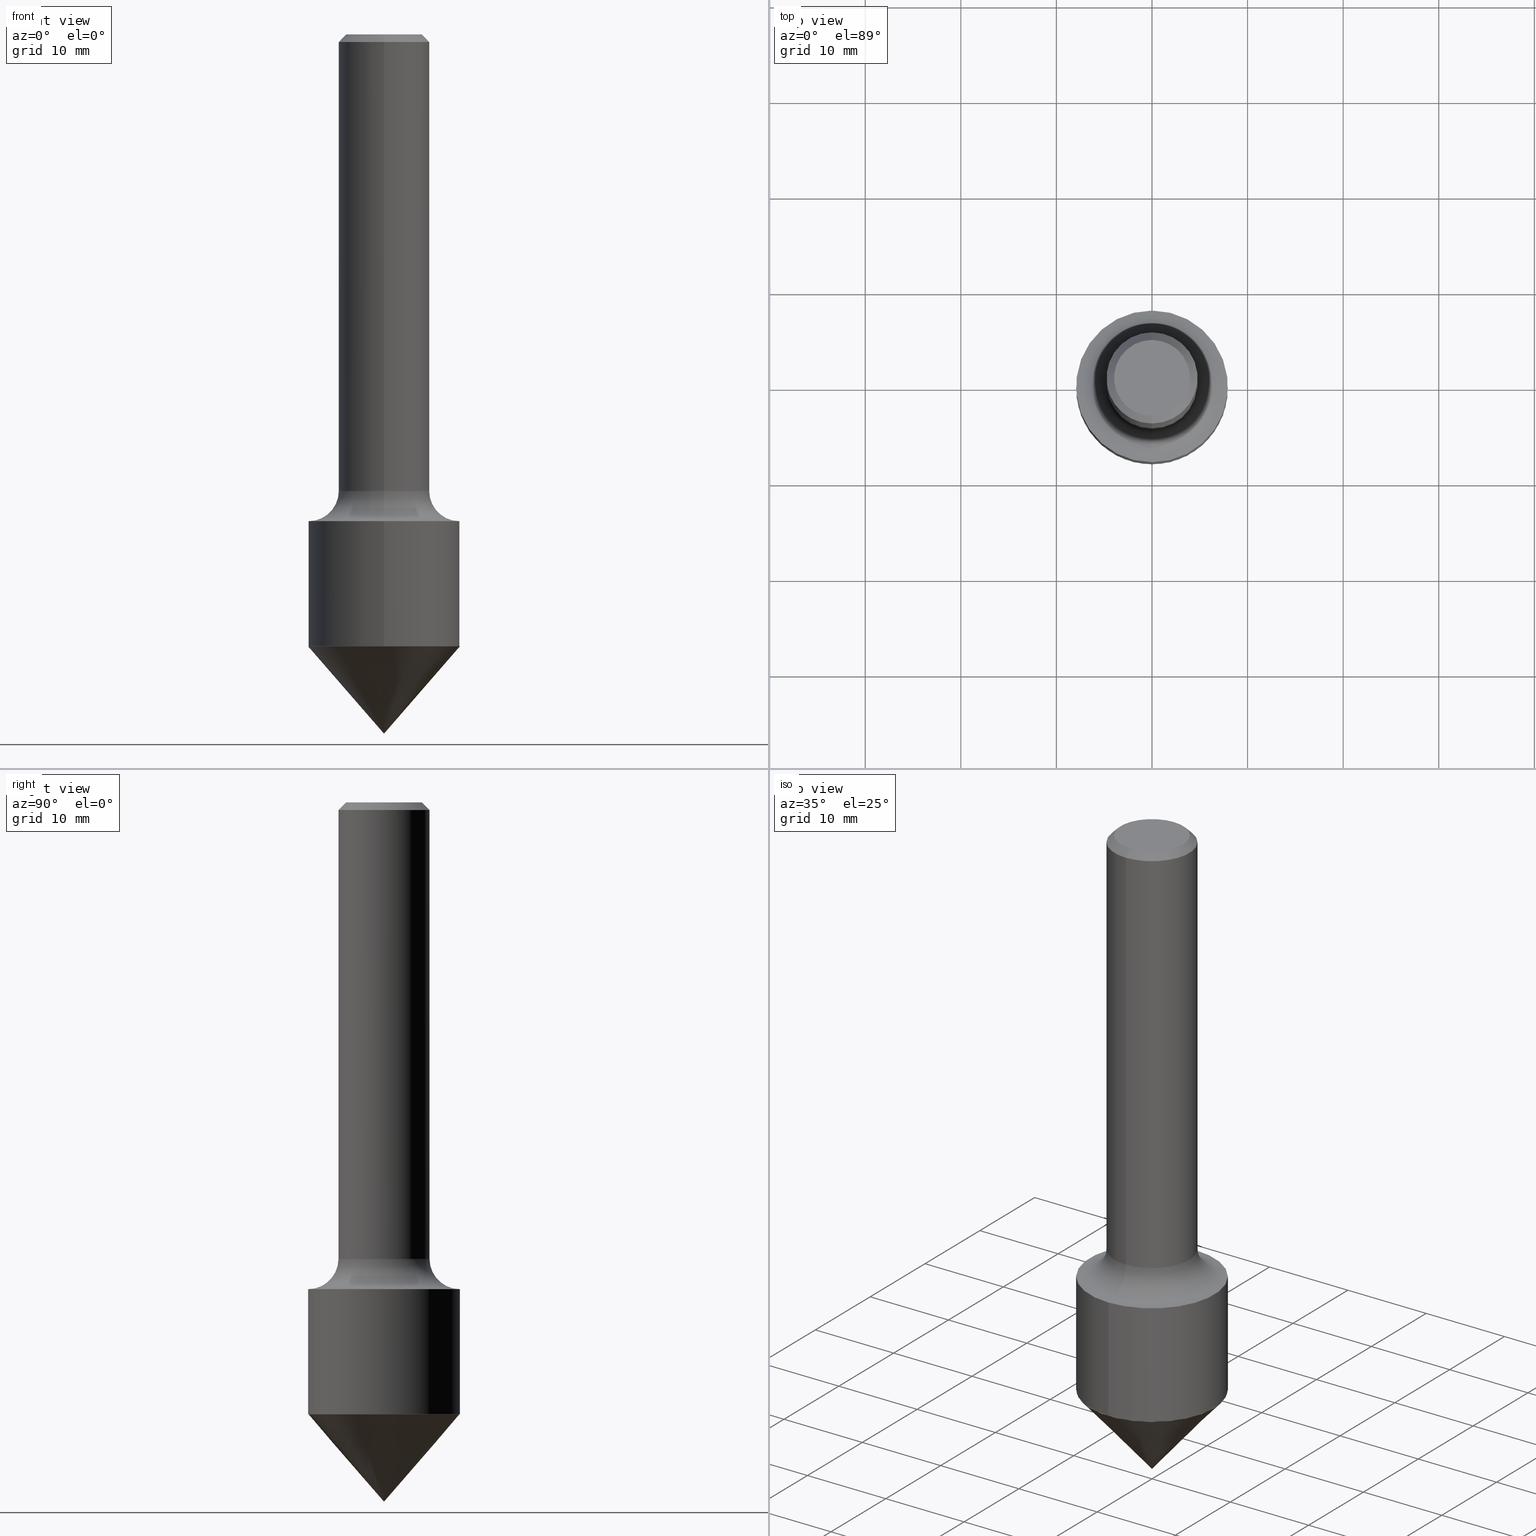
[diagram: canonical four-view strip — front | top / right | iso, engineering-drawing reading convention]
A machine part, canonical four-view strip (front | top / right | iso — engineering-drawing reading convention). The complete STEP part file that produces these views, byte-faithful:
ISO-10303-21;
HEADER;
FILE_DESCRIPTION (( 'STEP AP203' ),
    '1' );
FILE_NAME ('74116.STEP',
    '2024-03-01T13:00:27',
    ( '' ),
    ( '' ),
    'SwSTEP 2.0',
    'SolidWorks 2023',
    '' );
FILE_SCHEMA (( 'CONFIG_CONTROL_DESIGN' ));
ENDSEC;

DATA;
#1 = ADVANCED_FACE ( 'NONE', ( #14 ), #136, .T. ) ;
#2 = SHAPE_DEFINITION_REPRESENTATION ( #102, #349 ) ;
#3 = VECTOR ( 'NONE', #163, 39.37007874015748143 ) ;
#4 = ORIENTED_EDGE ( 'NONE', *, *, #23, .F. ) ;
#5 = APPROVAL_ROLE ( '' ) ;
#6 = ORIENTED_EDGE ( 'NONE', *, *, #292, .T. ) ;
#7 = APPROVAL_STATUS ( 'not_yet_approved' ) ;
#8 = ADVANCED_FACE ( 'NONE', ( #434 ), #134, .T. ) ;
#9 = ORIENTED_EDGE ( 'NONE', *, *, #170, .F. ) ;
#10 = MECHANICAL_CONTEXT ( 'NONE', #221, 'mechanical' ) ;
#11 = ORIENTED_EDGE ( 'NONE', *, *, #122, .F. ) ;
#12 = DIRECTION ( 'NONE',  ( 2.425980914324989080E-29, -3.519389109168798508E-15, -1.000000000000000000 ) ) ;
#13 = EDGE_CURVE ( 'NONE', #203, #107, #328, .T. ) ;
#14 = FACE_OUTER_BOUND ( 'NONE', #115, .T. ) ;
#15 = EDGE_CURVE ( 'NONE', #143, #162, #235, .T. ) ;
#16 = CARTESIAN_POINT ( 'NONE',  ( -1.179319605816925888E-15, -0.1563000000000000500, 5.620965447596539354E-16 ) ) ;
#17 = DIRECTION ( 'NONE',  ( 0.7071067811863543939, -7.319954787622606024E-15, -0.7071067811867406405 ) ) ;
#18 = CIRCLE ( 'NONE', #358, 0.1875000000000003331 ) ;
#19 = CYLINDRICAL_SURFACE ( 'NONE', #173, 0.1875000000000001943 ) ;
#20 = DIRECTION ( 'NONE',  ( -4.851104656540942976E-15, -0.7071067811865469066, -0.7071067811865481278 ) ) ;
#21 = FACE_OUTER_BOUND ( 'NONE', #463, .T. ) ;
#22 = CARTESIAN_POINT ( 'NONE',  ( 0.000000000000000000, 0.000000000000000000, 0.000000000000000000 ) ) ;
#23 = EDGE_CURVE ( 'NONE', #183, #185, #439, .T. ) ;
#24 = CARTESIAN_POINT ( 'NONE',  ( 6.904546971929095290E-29, -1.025366750120264811E-14, -2.879999999999999893 ) ) ;
#25 = DIRECTION ( 'NONE',  ( -6.982962677686265133E-15, -1.000000000000000000, 3.519389109168797719E-15 ) ) ;
#26 = AXIS2_PLACEMENT_3D ( 'NONE', #97, #248, #62 ) ;
#27 = VECTOR ( 'NONE', #285, 39.37007874015748143 ) ;
#28 = DIRECTION ( 'NONE',  ( -2.425980914324988519E-29, 3.519389109168798902E-15, 1.000000000000000000 ) ) ;
#29 = PLANE ( 'NONE',  #296 ) ;
#30 = PRODUCT ( '74116', '74116', '', ( #10 ) ) ;
#31 = ORIENTED_EDGE ( 'NONE', *, *, #275, .F. ) ;
#32 = DIRECTION ( 'NONE',  ( -6.982962677686265922E-15, -1.000000000000000000, 3.502369222646493339E-15 ) ) ;
#33 = EDGE_LOOP ( 'NONE', ( #43, #86, #426 ) ) ;
#34 =( GEOMETRIC_REPRESENTATION_CONTEXT ( 3 ) GLOBAL_UNCERTAINTY_ASSIGNED_CONTEXT ( ( #106 ) ) GLOBAL_UNIT_ASSIGNED_CONTEXT ( ( #386, #40, #85 ) ) REPRESENTATION_CONTEXT ( 'NONE', 'WORKASPACE' ) );
#35 = DIRECTION ( 'NONE',  ( -1.000000000000000000, 6.982962677686265922E-15, 0.000000000000000000 ) ) ;
#36 = EDGE_CURVE ( 'NONE', #107, #410, #476, .T. ) ;
#37 = LINE ( 'NONE', #371, #454 ) ;
#38 = DATE_AND_TIME ( #420, #165 ) ;
#39 = VERTEX_POINT ( 'NONE', #215 ) ;
#40 =( NAMED_UNIT ( * ) PLANE_ANGLE_UNIT ( ) SI_UNIT ( $, .RADIAN. ) );
#41 = AXIS2_PLACEMENT_3D ( 'NONE', #318, #326, #478 ) ;
#42 = AXIS2_PLACEMENT_3D ( 'NONE', #291, #99, #35 ) ;
#43 = ORIENTED_EDGE ( 'NONE', *, *, #381, .F. ) ;
#44 = ORIENTED_EDGE ( 'NONE', *, *, #194, .T. ) ;
#45 = CC_DESIGN_PERSON_AND_ORGANIZATION_ASSIGNMENT ( #314, #470, ( #271 ) ) ;
#46 = ORIENTED_EDGE ( 'NONE', *, *, #13, .T. ) ;
#47 = PERSON_AND_ORGANIZATION ( #311, #81 ) ;
#48 = ORIENTED_EDGE ( 'NONE', *, *, #58, .T. ) ;
#49 = CIRCLE ( 'NONE', #180, 0.3124999999999998335 ) ;
#50 = APPROVAL_PERSON_ORGANIZATION ( #272, #398, #5 ) ;
#51 = DIRECTION ( 'NONE',  ( -6.982962677686265133E-15, -1.000000000000000000, 0.000000000000000000 ) ) ;
#52 = EDGE_CURVE ( 'NONE', #302, #39, #91, .T. ) ;
#53 = CARTESIAN_POINT ( 'NONE',  ( 6.162605535072641427E-29, -8.798567444384187739E-15, -2.520009872743433021 ) ) ;
#54 = CARTESIAN_POINT ( 'NONE',  ( 1.776356839400297402E-15, 0.1874999999999936995, -1.880000000000001004 ) ) ;
#55 = DIRECTION ( 'NONE',  ( -2.445468806185136597E-29, 3.491481338843145583E-15, 1.000000000000000000 ) ) ;
#56 = CARTESIAN_POINT ( 'NONE',  ( 0.3119999999999997775, -1.093904281968890229E-14, -2.520009872743433021 ) ) ;
#57 = VECTOR ( 'NONE', #479, 39.37007874015748143 ) ;
#58 = EDGE_CURVE ( 'NONE', #185, #162, #335, .T. ) ;
#59 = DIRECTION ( 'NONE',  ( -2.425980914324989080E-29, 3.519389109168798508E-15, 1.000000000000000000 ) ) ;
#60 = DIRECTION ( 'NONE',  ( -1.000000000000000000, 6.982962677686265922E-15, -4.883557194083112340E-29 ) ) ;
#61 = LINE ( 'NONE', #133, #27 ) ;
#62 = DIRECTION ( 'NONE',  ( 7.105427357601001859E-15, 1.000000000000000000, 0.000000000000000000 ) ) ;
#63 = CARTESIAN_POINT ( 'NONE',  ( 2.216893335571572136E-15, 0.3119999999999909512, -2.520009872743434798 ) ) ;
#64 = ADVANCED_FACE ( 'NONE', ( #238 ), #65, .T. ) ;
#65 = CONICAL_SURFACE ( 'NONE', #343, 0.1875000000000000278, 0.7853981633974439491 ) ;
#66 = CIRCLE ( 'NONE', #224, 0.1875000000000003331 ) ;
#67 = DIRECTION ( 'NONE',  ( -6.982962677686265922E-15, -1.000000000000000000, 3.502369222646493339E-15 ) ) ;
#68 = EDGE_LOOP ( 'NONE', ( #274, #46 ) ) ;
#69 = CARTESIAN_POINT ( 'NONE',  ( -1.286343374582161379E-15, -0.1875000000000001110, -0.03119999999999956142 ) ) ;
#70 = DIRECTION ( 'NONE',  ( -2.425980914324989080E-29, 3.519389109168798508E-15, 1.000000000000000000 ) ) ;
#71 = VECTOR ( 'NONE', #287, 39.37007874015748143 ) ;
#72 = DIRECTION ( 'NONE',  ( -6.982962677686265922E-15, -1.000000000000000000, 3.519389109168798508E-15 ) ) ;
#73 = EDGE_CURVE ( 'NONE', #233, #382, #394, .T. ) ;
#74 = DIRECTION ( 'NONE',  ( -2.445468806185136597E-29, 3.491481338843145583E-15, 1.000000000000000000 ) ) ;
#75 = EDGE_LOOP ( 'NONE', ( #9, #484, #455, #4 ) ) ;
#76 = COORDINATED_UNIVERSAL_TIME_OFFSET ( 5, 0, .BEHIND. ) ;
#77 = EDGE_LOOP ( 'NONE', ( #354, #101 ) ) ;
#78 = EDGE_CURVE ( 'NONE', #410, #416, #195, .T. ) ;
#79 = APPROVAL_DATE_TIME ( #305, #436 ) ;
#80 = AXIS2_PLACEMENT_3D ( 'NONE', #93, #323, #289 ) ;
#81 = ORGANIZATION ( 'UNSPECIFIED', 'UNSPECIFIED', '' ) ;
#82 = VERTEX_POINT ( 'NONE', #321 ) ;
#83 = CALENDAR_DATE ( 2024, 1, 3 ) ;
#84 = ORIENTED_EDGE ( 'NONE', *, *, #411, .T. ) ;
#85 =( NAMED_UNIT ( * ) SI_UNIT ( $, .STERADIAN. ) SOLID_ANGLE_UNIT ( ) );
#86 = ORIENTED_EDGE ( 'NONE', *, *, #52, .T. ) ;
#87 = EDGE_CURVE ( 'NONE', #166, #82, #252, .T. ) ;
#88 = CARTESIAN_POINT ( 'NONE',  ( -2.182175836776895633E-15, -0.3125000000000086597, -2.519509872743431966 ) ) ;
#89 = AXIS2_PLACEMENT_3D ( 'NONE', #105, #190, #339 ) ;
#90 = FACE_OUTER_BOUND ( 'NONE', #422, .T. ) ;
#91 = LINE ( 'NONE', #169, #319 ) ;
#92 = DIRECTION ( 'NONE',  ( -2.425980914324989080E-29, 3.519389109168798508E-15, 1.000000000000000000 ) ) ;
#93 = CARTESIAN_POINT ( 'NONE',  ( 7.569060452694020354E-31, -1.098049402060672957E-16, -0.03120000000000022408 ) ) ;
#94 = DIRECTION ( 'NONE',  ( -6.982962677686265133E-15, -1.000000000000000000, 3.519389109168797719E-15 ) ) ;
#95 = AXIS2_PLACEMENT_3D ( 'NONE', #53, #121, #216 ) ;
#96 = LINE ( 'NONE', #174, #71 ) ;
#97 = CARTESIAN_POINT ( 'NONE',  ( 2.220446049250357651E-15, 0.3124999999999933387, -1.880000000000001448 ) ) ;
#98 = DIRECTION ( 'NONE',  ( -6.982962677686265922E-15, -1.000000000000000000, 3.519389109168798114E-15 ) ) ;
#99 = DIRECTION ( 'NONE',  ( 2.445468806185136597E-29, -3.491481338843145583E-15, -1.000000000000000000 ) ) ;
#100 = PRODUCT_RELATED_PRODUCT_CATEGORY ( 'detail', '', ( #30 ) ) ;
#101 = ORIENTED_EDGE ( 'NONE', *, *, #411, .F. ) ;
#102 = PRODUCT_DEFINITION_SHAPE ( 'NONE', 'NONE',  #141 ) ;
#103 = CARTESIAN_POINT ( 'NONE',  ( -2.178684355438052625E-15, -0.3120000000000087148, -2.520009872743432577 ) ) ;
#104 = ORIENTED_EDGE ( 'NONE', *, *, #87, .F. ) ;
#105 = CARTESIAN_POINT ( 'NONE',  ( 4.549790374175883781E-29, -6.632281116866721359E-15, -1.880000000000000338 ) ) ;
#106 = UNCERTAINTY_MEASURE_WITH_UNIT (LENGTH_MEASURE( 1.000000000000000082E-05 ), #386, 'distance_accuracy_value', 'NONE');
#107 = VERTEX_POINT ( 'NONE', #282 ) ;
#108 = DIRECTION ( 'NONE',  ( -2.445468806185136597E-29, 3.491481338843145583E-15, 1.000000000000000000 ) ) ;
#109 = AXIS2_PLACEMENT_3D ( 'NONE', #401, #209, #357 ) ;
#110 = AXIS2_PLACEMENT_3D ( 'NONE', #361, #92, #243 ) ;
#111 = DIRECTION ( 'NONE',  ( -2.425980914324989080E-29, 3.519389109168798508E-15, 1.000000000000000000 ) ) ;
#112 = LOCAL_TIME ( 8, 0, 27.00000000000000000, #76 ) ;
#113 = ORIENTED_EDGE ( 'NONE', *, *, #78, .F. ) ;
#114 = APPROVAL_STATUS ( 'not_yet_approved' ) ;
#115 = EDGE_LOOP ( 'NONE', ( #312, #298, #348, #31 ) ) ;
#116 = PERSON_AND_ORGANIZATION_ROLE ( 'classification_officer' ) ;
#117 = EDGE_LOOP ( 'NONE', ( #253, #332, #459 ) ) ;
#118 = AXIS2_PLACEMENT_3D ( 'NONE', #482, #366, #25 ) ;
#119 = DATE_TIME_ROLE ( 'creation_date' ) ;
#120 = ORIENTED_EDGE ( 'NONE', *, *, #270, .F. ) ;
#121 = DIRECTION ( 'NONE',  ( 2.445468806185136597E-29, -3.491481338843145583E-15, -1.000000000000000000 ) ) ;
#122 = EDGE_CURVE ( 'NONE', #203, #416, #472, .T. ) ;
#123 = DATE_AND_TIME ( #83, #424 ) ;
#124 = ORIENTED_EDGE ( 'NONE', *, *, #170, .T. ) ;
#125 = PERSON_AND_ORGANIZATION ( #311, #81 ) ;
#126 = DIRECTION ( 'NONE',  ( -2.425980914324989080E-29, 3.519389109168798508E-15, 1.000000000000000000 ) ) ;
#127 = VECTOR ( 'NONE', #17, 39.37007874015748143 ) ;
#128 = CARTESIAN_POINT ( 'NONE',  ( 0.000000000000000000, 0.000000000000000000, 0.000000000000000000 ) ) ;
#129 = CIRCLE ( 'NONE', #481, 0.3124999999999998335 ) ;
#130 = DIRECTION ( 'NONE',  ( 1.000000000000000000, -6.982962677686264344E-15, 0.000000000000000000 ) ) ;
#131 = DIRECTION ( 'NONE',  ( 4.937700262164526743E-15, 0.7071067811865420216, -0.7071067811865530128 ) ) ;
#132 = EDGE_CURVE ( 'NONE', #340, #233, #447, .T. ) ;
#133 = CARTESIAN_POINT ( 'NONE',  ( 2.220446049250311109E-15, 0.3124999999999998335, -1.099809096615248696E-15 ) ) ;
#134 = CYLINDRICAL_SURFACE ( 'NONE', #262, 0.1875000000000001943 ) ;
#135 = DIRECTION ( 'NONE',  ( -2.445468806185136597E-29, 3.491481338843145583E-15, 1.000000000000000000 ) ) ;
#136 = CYLINDRICAL_SURFACE ( 'NONE', #376, 0.3124999999999998335 ) ;
#137 = AXIS2_PLACEMENT_3D ( 'NONE', #451, #108, #261 ) ;
#138 = LOCAL_TIME ( 8, 0, 27.00000000000000000, #457 ) ;
#139 = DIRECTION ( 'NONE',  ( 1.000000000000000000, -6.982962677686269866E-15, 0.000000000000000000 ) ) ;
#140 = CARTESIAN_POINT ( 'NONE',  ( -1.309305502066131621E-15, -0.1875000000000069389, -1.879999999999999893 ) ) ;
#141 = PRODUCT_DEFINITION ( 'UNKNOWN', '', #271, #317 ) ;
#142 = DIRECTION ( 'NONE',  ( -2.425980914324989080E-29, 3.519389109168798508E-15, 1.000000000000000000 ) ) ;
#143 = VERTEX_POINT ( 'NONE', #54 ) ;
#144 = MANIFOLD_SOLID_BREP ( 'Body-Move/Copy2[2]', #431 ) ;
#145 = CARTESIAN_POINT ( 'NONE',  ( -2.915065215969391447E-46, 4.228907454720856931E-32, 1.201602699657052482E-17 ) ) ;
#146 = MANIFOLD_SOLID_BREP ( 'Body-Move/Copy2[1]', #200 ) ;
#147 = ORIENTED_EDGE ( 'NONE', *, *, #122, .T. ) ;
#148 = LOCAL_TIME ( 8, 0, 27.00000000000000000, #417 ) ;
#149 = ORIENTED_EDGE ( 'NONE', *, *, #395, .T. ) ;
#150 = ADVANCED_FACE ( 'NONE', ( #438 ), #295, .T. ) ;
#151 = DIRECTION ( 'NONE',  ( -6.982962677686265922E-15, -1.000000000000000000, 2.913971193241875639E-15 ) ) ;
#152 = ORIENTED_EDGE ( 'NONE', *, *, #212, .T. ) ;
#153 = LINE ( 'NONE', #373, #208 ) ;
#154 = ORIENTED_EDGE ( 'NONE', *, *, #395, .F. ) ;
#155 = VECTOR ( 'NONE', #131, 39.37007874015748143 ) ;
#156 = CONICAL_SURFACE ( 'NONE', #369, 0.3119999999999998330, 0.7853981633966971021 ) ;
#157 = CARTESIAN_POINT ( 'NONE',  ( 0.000000000000000000, 0.000000000000000000, 0.000000000000000000 ) ) ;
#158 = ORIENTED_EDGE ( 'NONE', *, *, #15, .F. ) ;
#159 = APPROVAL_ROLE ( '' ) ;
#160 = ORIENTED_EDGE ( 'NONE', *, *, #23, .T. ) ;
#161 = CALENDAR_DATE ( 2024, 1, 3 ) ;
#162 = VERTEX_POINT ( 'NONE', #443 ) ;
#163 = DIRECTION ( 'NONE',  ( 5.024295867784287690E-15, 0.7071067811860187735, 0.7071067811870762609 ) ) ;
#164 = PERSON_AND_ORGANIZATION ( #311, #81 ) ;
#165 = LOCAL_TIME ( 8, 0, 27.00000000000000000, #277 ) ;
#166 = VERTEX_POINT ( 'NONE', #88 ) ;
#167 = APPROVAL_DATE_TIME ( #123, #398 ) ;
#168 = DIRECTION ( 'NONE',  ( 6.982962677686265922E-15, 1.000000000000000000, -3.528636991816339448E-15 ) ) ;
#169 = CARTESIAN_POINT ( 'NONE',  ( -0.3124999999999996669, -6.579867135803297740E-15, -2.520509872743433188 ) ) ;
#170 = EDGE_CURVE ( 'NONE', #143, #183, #18, .T. ) ;
#171 = CARTESIAN_POINT ( 'NONE',  ( 4.864091733221603121E-29, -7.056375163883441320E-15, -2.004999999999999893 ) ) ;
#172 = CARTESIAN_POINT ( 'NONE',  ( 4.864091733221603121E-29, -7.056375163883441320E-15, -2.004999999999999893 ) ) ;
#173 = AXIS2_PLACEMENT_3D ( 'NONE', #433, #393, #98 ) ;
#174 = CARTESIAN_POINT ( 'NONE',  ( -2.178684355438052625E-15, -0.3120000000000087148, -2.520009872743432577 ) ) ;
#175 = CC_DESIGN_PERSON_AND_ORGANIZATION_ASSIGNMENT ( #47, #467, ( #141 ) ) ;
#176 = CARTESIAN_POINT ( 'NONE',  ( -1.286343374582161379E-15, -0.1875000000000001110, -0.03119999999999956142 ) ) ;
#177 = LINE ( 'NONE', #205, #309 ) ;
#178 = CARTESIAN_POINT ( 'NONE',  ( 1.309305502066175797E-15, 0.1874999999999999167, -0.03120000000000088675 ) ) ;
#179 = CARTESIAN_POINT ( 'NONE',  ( -2.182175836776908649E-15, -0.3125000000000069389, -2.004999999999999005 ) ) ;
#180 = AXIS2_PLACEMENT_3D ( 'NONE', #453, #452, #415 ) ;
#181 = ADVANCED_FACE ( 'NONE', ( #392 ), #204, .T. ) ;
#182 = DIRECTION ( 'NONE',  ( -6.982962677686265922E-15, -1.000000000000000000, 3.519389109168798902E-15 ) ) ;
#183 = VERTEX_POINT ( 'NONE', #140 ) ;
#184 = FACE_OUTER_BOUND ( 'NONE', #206, .T. ) ;
#185 = VERTEX_POINT ( 'NONE', #179 ) ;
#186 = DIRECTION ( 'NONE',  ( -2.425980914324989080E-29, 3.519389109168798508E-15, 1.000000000000000000 ) ) ;
#187 = CONICAL_SURFACE ( 'NONE', #95, 0.3119999999999997775, 0.7853981633971751641 ) ;
#188 = DIRECTION ( 'NONE',  ( -2.425980914324989080E-29, 3.519389109168798508E-15, 1.000000000000000000 ) ) ;
#189 = ADVANCED_FACE ( 'NONE', ( #330 ), #333, .F. ) ;
#190 = DIRECTION ( 'NONE',  ( -2.425980914324989080E-29, 3.519389109168798508E-15, 1.000000000000000000 ) ) ;
#191 = ADVANCED_FACE ( 'NONE', ( #90 ), #19, .T. ) ;
#192 = CALENDAR_DATE ( 2024, 1, 3 ) ;
#193 = ORIENTED_EDGE ( 'NONE', *, *, #212, .F. ) ;
#194 = EDGE_CURVE ( 'NONE', #233, #340, #399, .T. ) ;
#195 = CIRCLE ( 'NONE', #473, 0.1875000000000000278 ) ;
#196 = PERSON_AND_ORGANIZATION_ROLE ( 'creator' ) ;
#197 = ORIENTED_EDGE ( 'NONE', *, *, #403, .F. ) ;
#198 = ORIENTED_EDGE ( 'NONE', *, *, #194, .F. ) ;
#199 = ORIENTED_EDGE ( 'NONE', *, *, #466, .T. ) ;
#200 = CLOSED_SHELL ( 'NONE', ( #229, #219, #485, #375, #189 ) ) ;
#201 = DATE_AND_TIME ( #462, #138 ) ;
#202 = CONICAL_SURFACE ( 'NONE', #42, 0.3119999999999997775, 0.7853981633971751641 ) ;
#203 = VERTEX_POINT ( 'NONE', #16 ) ;
#204 = CYLINDRICAL_SURFACE ( 'NONE', #118, 0.3124999999999998335 ) ;
#205 = CARTESIAN_POINT ( 'NONE',  ( 1.332267629550188835E-15, 0.1875000000000001943, -6.598854579691503612E-16 ) ) ;
#206 = EDGE_LOOP ( 'NONE', ( #461, #372, #104, #193 ) ) ;
#207 = CARTESIAN_POINT ( 'NONE',  ( -0.3119999999999997775, -6.619883088946073188E-15, -2.520009872743433021 ) ) ;
#208 = VECTOR ( 'NONE', #488, 39.37007874015748143 ) ;
#209 = DIRECTION ( 'NONE',  ( -2.425980914324989080E-29, 3.519389109168798508E-15, 1.000000000000000000 ) ) ;
#210 = CIRCLE ( 'NONE', #336, 0.3124999999999996669 ) ;
#211 = DIRECTION ( 'NONE',  ( 1.000000000000000000, -6.982962677686264344E-15, 0.000000000000000000 ) ) ;
#212 = EDGE_CURVE ( 'NONE', #418, #166, #96, .T. ) ;
#213 = DIRECTION ( 'NONE',  ( -2.425980914324989080E-29, 3.519389109168798508E-15, 1.000000000000000000 ) ) ;
#214 = CARTESIAN_POINT ( 'NONE',  ( 6.162605535072641427E-29, -8.798567444384187739E-15, -2.520009872743433021 ) ) ;
#215 = CARTESIAN_POINT ( 'NONE',  ( -0.3124999999999996669, -6.618137348276653262E-15, -2.520509872743433188 ) ) ;
#216 = DIRECTION ( 'NONE',  ( -1.000000000000000000, 6.982962677686265922E-15, 0.000000000000000000 ) ) ;
#217 = CIRCLE ( 'NONE', #474, 0.1563000000000000500 ) ;
#218 = DIRECTION ( 'NONE',  ( -6.982962677686265922E-15, -1.000000000000000000, 3.502369222646493339E-15 ) ) ;
#219 = ADVANCED_FACE ( 'NONE', ( #247 ), #187, .T. ) ;
#220 = CARTESIAN_POINT ( 'NONE',  ( 6.113495855186114109E-29, -8.868895301131090328E-15, -2.520009872743433466 ) ) ;
#221 = APPLICATION_CONTEXT ( 'configuration controlled 3d designs of mechanical parts and assemblies' ) ;
#222 = FACE_OUTER_BOUND ( 'NONE', #77, .T. ) ;
#223 = AXIS2_PLACEMENT_3D ( 'NONE', #172, #362, #315 ) ;
#224 = AXIS2_PLACEMENT_3D ( 'NONE', #409, #70, #151 ) ;
#225 = FACE_OUTER_BOUND ( 'NONE', #75, .T. ) ;
#226 = EDGE_CURVE ( 'NONE', #232, #82, #249, .T. ) ;
#227 = PERSON_AND_ORGANIZATION ( #311, #81 ) ;
#228 = ORIENTED_EDGE ( 'NONE', *, *, #58, .F. ) ;
#229 = ADVANCED_FACE ( 'NONE', ( #308 ), #391, .T. ) ;
#230 = EDGE_LOOP ( 'NONE', ( #265, #6, #228, #491 ) ) ;
#231 = VECTOR ( 'NONE', #365, 39.37007874015748143 ) ;
#232 = VERTEX_POINT ( 'NONE', #442 ) ;
#233 = VERTEX_POINT ( 'NONE', #402 ) ;
#234 = ORIENTED_EDGE ( 'NONE', *, *, #78, .T. ) ;
#235 = CIRCLE ( 'NONE', #26, 0.1249999999999996253 ) ;
#236 = TOROIDAL_SURFACE ( 'NONE', #110, 0.3124999999999999445, 0.1249999999999996253 ) ;
#237 = APPROVAL_PERSON_ORGANIZATION ( #227, #307, #379 ) ;
#238 = FACE_OUTER_BOUND ( 'NONE', #267, .T. ) ;
#239 = CARTESIAN_POINT ( 'NONE',  ( 7.569060452694020354E-31, -1.098049402060672957E-16, -0.03120000000000022408 ) ) ;
#240 = DIRECTION ( 'NONE',  ( -2.445468806185136597E-29, 3.491481338843145583E-15, 1.000000000000000000 ) ) ;
#241 = DIRECTION ( 'NONE',  ( -6.982962677686265922E-15, -1.000000000000000000, 3.528636991816339448E-15 ) ) ;
#242 = DIRECTION ( 'NONE',  ( -2.425980914324989080E-29, 3.519389109168798508E-15, 1.000000000000000000 ) ) ;
#243 = DIRECTION ( 'NONE',  ( -6.982962677686265133E-15, -1.000000000000000000, 3.519389109168798508E-15 ) ) ;
#244 = AXIS2_PLACEMENT_3D ( 'NONE', #444, #405, #448 ) ;
#245 = DIRECTION ( 'NONE',  ( -2.425980914324989080E-29, 3.519389109168798508E-15, 1.000000000000000000 ) ) ;
#246 = ADVANCED_FACE ( 'NONE', ( #21 ), #236, .F. ) ;
#247 = FACE_OUTER_BOUND ( 'NONE', #259, .T. ) ;
#248 = DIRECTION ( 'NONE',  ( 1.000000000000000000, -7.105427357601001070E-15, 4.926657280158088784E-29 ) ) ;
#249 = LINE ( 'NONE', #63, #3 ) ;
#250 = DIMENSIONAL_EXPONENTS ( 1.000000000000000000, 0.000000000000000000, 0.000000000000000000, 0.000000000000000000, 0.000000000000000000, 0.000000000000000000, 0.000000000000000000 ) ;
#251 = CARTESIAN_POINT ( 'NONE',  ( 6.113495855186114109E-29, -8.868895301131090328E-15, -2.520009872743433466 ) ) ;
#252 = CIRCLE ( 'NONE', #41, 0.3124999999999998335 ) ;
#253 = ORIENTED_EDGE ( 'NONE', *, *, #52, .F. ) ;
#254 = AXIS2_PLACEMENT_3D ( 'NONE', #299, #111, #445 ) ;
#255 = FACE_OUTER_BOUND ( 'NONE', #306, .T. ) ;
#256 = ORIENTED_EDGE ( 'NONE', *, *, #73, .F. ) ;
#257 = CC_DESIGN_DATE_AND_TIME_ASSIGNMENT ( #201, #119, ( #141 ) ) ;
#258 = FACE_OUTER_BOUND ( 'NONE', #293, .T. ) ;
#259 = EDGE_LOOP ( 'NONE', ( #198, #351, #390, #380 ) ) ;
#260 = EDGE_CURVE ( 'NONE', #416, #410, #377, .T. ) ;
#261 = DIRECTION ( 'NONE',  ( 1.000000000000000000, -6.982962677686264344E-15, 0.000000000000000000 ) ) ;
#262 = AXIS2_PLACEMENT_3D ( 'NONE', #22, #245, #286 ) ;
#263 = AXIS2_PLACEMENT_3D ( 'NONE', #483, #142, #32 ) ;
#264 = DIRECTION ( 'NONE',  ( -2.425980914324989080E-29, 3.519389109168798508E-15, 1.000000000000000000 ) ) ;
#265 = ORIENTED_EDGE ( 'NONE', *, *, #87, .T. ) ;
#266 = PERSON_AND_ORGANIZATION ( #311, #81 ) ;
#267 = EDGE_LOOP ( 'NONE', ( #11, #197, #468, #234 ) ) ;
#268 = APPROVAL_DATE_TIME ( #341, #307 ) ;
#269 = ORIENTED_EDGE ( 'NONE', *, *, #226, .F. ) ;
#270 = EDGE_CURVE ( 'NONE', #143, #410, #177, .T. ) ;
#271 = PRODUCT_DEFINITION_FORMATION_WITH_SPECIFIED_SOURCE ( 'ANY', '', #30, .NOT_KNOWN. ) ;
#272 = PERSON_AND_ORGANIZATION ( #311, #81 ) ;
#273 = CC_DESIGN_APPROVAL ( #398, ( #271 ) ) ;
#274 = ORIENTED_EDGE ( 'NONE', *, *, #403, .T. ) ;
#275 = EDGE_CURVE ( 'NONE', #162, #185, #129, .T. ) ;
#276 = ORIENTED_EDGE ( 'NONE', *, *, #36, .F. ) ;
#277 = COORDINATED_UNIVERSAL_TIME_OFFSET ( 5, 0, .BEHIND. ) ;
#278 = EDGE_CURVE ( 'NONE', #340, #39, #477, .T. ) ;
#279 = DIRECTION ( 'NONE',  ( -6.982962677686265922E-15, -1.000000000000000000, 2.913971193241875639E-15 ) ) ;
#280 = AXIS2_PLACEMENT_3D ( 'NONE', #239, #59, #241 ) ;
#281 = CC_DESIGN_PERSON_AND_ORGANIZATION_ASSIGNMENT ( #125, #116, ( #456 ) ) ;
#282 = CARTESIAN_POINT ( 'NONE',  ( 1.200371284294269833E-15, 0.1563000000000000500, -5.380644907665128611E-16 ) ) ;
#283 = DIRECTION ( 'NONE',  ( -1.000000000000000000, 6.982962677686265922E-15, -4.876176775795935793E-29 ) ) ;
#284 = CARTESIAN_POINT ( 'NONE',  ( 7.569060452694020354E-31, -1.098049402060672957E-16, -0.03120000000000022408 ) ) ;
#285 = DIRECTION ( 'NONE',  ( -2.425980914324989080E-29, 3.519389109168798902E-15, 1.000000000000000000 ) ) ;
#286 = DIRECTION ( 'NONE',  ( -6.982962677686265922E-15, -1.000000000000000000, 3.519389109168798114E-15 ) ) ;
#287 = DIRECTION ( 'NONE',  ( -4.937700262160838818E-15, -0.7071067811860138885, 0.7071067811870811459 ) ) ;
#288 = CONICAL_SURFACE ( 'NONE', #137, 0.3124999999999996669, 0.7155849933176725575 ) ;
#289 = DIRECTION ( 'NONE',  ( 6.982962677686265922E-15, 1.000000000000000000, -3.528636991816339448E-15 ) ) ;
#290 = PLANE ( 'NONE',  #244 ) ;
#291 = CARTESIAN_POINT ( 'NONE',  ( 6.162605535072641427E-29, -8.798567444384187739E-15, -2.520009872743433021 ) ) ;
#292 = EDGE_CURVE ( 'NONE', #82, #162, #61, .T. ) ;
#293 = EDGE_LOOP ( 'NONE', ( #269, #84, #152, #387 ) ) ;
#294 =( LENGTH_UNIT ( ) NAMED_UNIT ( * ) SI_UNIT ( $, .METRE. ) );
#295 = CONICAL_SURFACE ( 'NONE', #80, 0.1875000000000000278, 0.7853981633974439491 ) ;
#296 = AXIS2_PLACEMENT_3D ( 'NONE', #374, #28, #182 ) ;
#297 = DIRECTION ( 'NONE',  ( 1.000000000000000000, -6.982962677686264344E-15, 0.000000000000000000 ) ) ;
#298 = ORIENTED_EDGE ( 'NONE', *, *, #360, .T. ) ;
#299 = CARTESIAN_POINT ( 'NONE',  ( 6.113495855186114109E-29, -8.868895301131090328E-15, -2.520009872743433466 ) ) ;
#300 = ORIENTED_EDGE ( 'NONE', *, *, #441, .T. ) ;
#301 = TOROIDAL_SURFACE ( 'NONE', #89, 0.3124999999999999445, 0.1249999999999996253 ) ;
#302 = VERTEX_POINT ( 'NONE', #24 ) ;
#303 = APPLICATION_PROTOCOL_DEFINITION ( 'international standard', 'config_control_design', 1994, #353 ) ;
#304 = ORIENTED_EDGE ( 'NONE', *, *, #260, .T. ) ;
#305 = DATE_AND_TIME ( #161, #148 ) ;
#306 = EDGE_LOOP ( 'NONE', ( #256, #346, #486, #300 ) ) ;
#307 = APPROVAL ( #114, 'UNSPECIFIED' ) ;
#308 = FACE_OUTER_BOUND ( 'NONE', #33, .T. ) ;
#309 = VECTOR ( 'NONE', #356, 39.37007874015748143 ) ;
#310 = PERSON_AND_ORGANIZATION ( #311, #81 ) ;
#311 = PERSON ( 'UNSPECIFIED', 'UNSPECIFIED', 'UNSPECIFIED', ('UNSPECIFIED'), ('UNSPECIFIED'), ('UNSPECIFIED') ) ;
#312 = ORIENTED_EDGE ( 'NONE', *, *, #292, .F. ) ;
#313 = EDGE_CURVE ( 'NONE', #382, #39, #210, .T. ) ;
#314 = PERSON_AND_ORGANIZATION ( #311, #81 ) ;
#315 = DIRECTION ( 'NONE',  ( -6.982962677686265133E-15, -1.000000000000000000, 3.496765431890258892E-15 ) ) ;
#316 = EDGE_CURVE ( 'NONE', #166, #185, #325, .T. ) ;
#317 = DESIGN_CONTEXT ( 'detailed design', #353, 'design' ) ;
#318 = CARTESIAN_POINT ( 'NONE',  ( 6.112282864728949596E-29, -8.867135606576502190E-15, -2.519509872743432854 ) ) ;
#319 = VECTOR ( 'NONE', #364, 39.37007874015748143 ) ;
#320 = AXIS2_PLACEMENT_3D ( 'NONE', #220, #188, #218 ) ;
#321 = CARTESIAN_POINT ( 'NONE',  ( 2.220446049250365935E-15, 0.3124999999999909517, -2.519509872743433743 ) ) ;
#322 = DIRECTION ( 'NONE',  ( -6.982962677686265133E-15, -1.000000000000000000, 3.496765431890258892E-15 ) ) ;
#323 = DIRECTION ( 'NONE',  ( 2.425980914324989080E-29, -3.519389109168798508E-15, -1.000000000000000000 ) ) ;
#324 = ADVANCED_FACE ( 'NONE', ( #329 ), #290, .F. ) ;
#325 = LINE ( 'NONE', #363, #57 ) ;
#326 = DIRECTION ( 'NONE',  ( -2.425980914324989080E-29, 3.519389109168798508E-15, 1.000000000000000000 ) ) ;
#327 = CC_DESIGN_DATE_AND_TIME_ASSIGNMENT ( #38, #429, ( #456 ) ) ;
#328 = CIRCLE ( 'NONE', #109, 0.1563000000000000500 ) ;
#329 = FACE_OUTER_BOUND ( 'NONE', #68, .T. ) ;
#330 = FACE_OUTER_BOUND ( 'NONE', #428, .T. ) ;
#331 = CARTESIAN_POINT ( 'NONE',  ( 1.309305502066175797E-15, 0.1874999999999999167, -0.03120000000000088675 ) ) ;
#332 = ORIENTED_EDGE ( 'NONE', *, *, #381, .T. ) ;
#333 = PLANE ( 'NONE',  #487 ) ;
#334 = CARTESIAN_POINT ( 'NONE',  ( 6.163828269475734229E-29, -8.800313185053610032E-15, -2.520509872743433188 ) ) ;
#335 = CIRCLE ( 'NONE', #223, 0.3124999999999998335 ) ;
#336 = AXIS2_PLACEMENT_3D ( 'NONE', #437, #400, #211 ) ;
#337 = ORIENTED_EDGE ( 'NONE', *, *, #466, .F. ) ;
#338 = CC_DESIGN_APPROVAL ( #307, ( #456 ) ) ;
#339 = DIRECTION ( 'NONE',  ( -6.982962677686265133E-15, -1.000000000000000000, 3.519389109168798508E-15 ) ) ;
#340 = VERTEX_POINT ( 'NONE', #368 ) ;
#341 = DATE_AND_TIME ( #192, #112 ) ;
#342 = ORIENTED_EDGE ( 'NONE', *, *, #260, .F. ) ;
#343 = AXIS2_PLACEMENT_3D ( 'NONE', #430, #12, #168 ) ;
#344 = CIRCLE ( 'NONE', #320, 0.3119999999999998330 ) ;
#345 = PERSON_AND_ORGANIZATION_ROLE ( 'design_owner' ) ;
#346 = ORIENTED_EDGE ( 'NONE', *, *, #132, .F. ) ;
#347 = ADVANCED_FACE ( 'NONE', ( #258 ), #406, .T. ) ;
#348 = ORIENTED_EDGE ( 'NONE', *, *, #316, .T. ) ;
#349 = ADVANCED_BREP_SHAPE_REPRESENTATION ( '74116', ( #146, #144, #449 ), #34 ) ;
#350 = DIRECTION ( 'NONE',  ( 1.000000000000000000, 0.000000000000000000, 0.000000000000000000 ) ) ;
#351 = ORIENTED_EDGE ( 'NONE', *, *, #73, .T. ) ;
#352 = APPROVAL_STATUS ( 'not_yet_approved' ) ;
#353 = APPLICATION_CONTEXT ( 'configuration controlled 3d designs of mechanical parts and assemblies' ) ;
#354 = ORIENTED_EDGE ( 'NONE', *, *, #490, .F. ) ;
#355 = DIRECTION ( 'NONE',  ( -6.982962677686265922E-15, -1.000000000000000000, 3.528636991816339448E-15 ) ) ;
#356 = DIRECTION ( 'NONE',  ( -2.425980914324989080E-29, 3.519389109168798902E-15, 1.000000000000000000 ) ) ;
#357 = DIRECTION ( 'NONE',  ( -6.982962677686265922E-15, -1.000000000000000000, 3.519389109168798508E-15 ) ) ;
#358 = AXIS2_PLACEMENT_3D ( 'NONE', #471, #126, #279 ) ;
#359 = APPROVAL_PERSON_ORGANIZATION ( #310, #436, #159 ) ;
#360 = EDGE_CURVE ( 'NONE', #82, #166, #49, .T. ) ;
#361 = CARTESIAN_POINT ( 'NONE',  ( 4.549790374175883781E-29, -6.632281116866721359E-15, -1.880000000000000338 ) ) ;
#362 = DIRECTION ( 'NONE',  ( -2.425980914324989080E-29, 3.519389109168798508E-15, 1.000000000000000000 ) ) ;
#363 = CARTESIAN_POINT ( 'NONE',  ( -2.182175836776956769E-15, -0.3124999999999998335, 1.099809096615248696E-15 ) ) ;
#364 = DIRECTION ( 'NONE',  ( -0.6560590289905053885, 7.296634188384243692E-15, 0.7547095802227736794 ) ) ;
#365 = DIRECTION ( 'NONE',  ( -0.7071067811863543939, 2.468850131080234027E-15, -0.7071067811867406405 ) ) ;
#366 = DIRECTION ( 'NONE',  ( -2.425980914324989080E-29, 3.519389109168798508E-15, 1.000000000000000000 ) ) ;
#367 = AXIS2_PLACEMENT_3D ( 'NONE', #397, #60, #51 ) ;
#368 = CARTESIAN_POINT ( 'NONE',  ( -0.3119999999999997775, -6.619010218611363620E-15, -2.520009872743433021 ) ) ;
#369 = AXIS2_PLACEMENT_3D ( 'NONE', #251, #264, #67 ) ;
#370 = CC_DESIGN_PERSON_AND_ORGANIZATION_ASSIGNMENT ( #266, #345, ( #30 ) ) ;
#371 = CARTESIAN_POINT ( 'NONE',  ( 0.3124999999999996669, -1.098248902183056522E-14, -2.520509872743433188 ) ) ;
#372 = ORIENTED_EDGE ( 'NONE', *, *, #226, .T. ) ;
#373 = CARTESIAN_POINT ( 'NONE',  ( -1.309305502066176192E-15, -0.1875000000000001943, 6.598854579691503612E-16 ) ) ;
#374 = CARTESIAN_POINT ( 'NONE',  ( 2.178684355438174899E-15, 0.3119999999999909512, -2.520009872743434798 ) ) ;
#375 = ADVANCED_FACE ( 'NONE', ( #378 ), #288, .T. ) ;
#376 = AXIS2_PLACEMENT_3D ( 'NONE', #128, #242, #94 ) ;
#377 = CIRCLE ( 'NONE', #280, 0.1875000000000000278 ) ;
#378 = FACE_OUTER_BOUND ( 'NONE', #117, .T. ) ;
#379 = APPROVAL_ROLE ( '' ) ;
#380 = ORIENTED_EDGE ( 'NONE', *, *, #278, .F. ) ;
#381 = EDGE_CURVE ( 'NONE', #302, #382, #37, .T. ) ;
#382 = VERTEX_POINT ( 'NONE', #407 ) ;
#383 = VECTOR ( 'NONE', #20, 39.37007874015748143 ) ;
#384 = CIRCLE ( 'NONE', #254, 0.3119999999999998330 ) ;
#385 = ORIENTED_EDGE ( 'NONE', *, *, #270, .T. ) ;
#386 =( CONVERSION_BASED_UNIT ( 'INCH', #492 ) LENGTH_UNIT ( ) NAMED_UNIT ( #250 ) );
#387 = ORIENTED_EDGE ( 'NONE', *, *, #360, .F. ) ;
#388 = CARTESIAN_POINT ( 'NONE',  ( 2.178684355438174899E-15, 0.3119999999999909512, -2.520009872743434354 ) ) ;
#389 = APPLICATION_PROTOCOL_DEFINITION ( 'international standard', 'config_control_design', 1994, #221 ) ;
#390 = ORIENTED_EDGE ( 'NONE', *, *, #313, .T. ) ;
#391 = CONICAL_SURFACE ( 'NONE', #464, 0.3124999999999996669, 0.7155849933176725575 ) ;
#392 = FACE_OUTER_BOUND ( 'NONE', #230, .T. ) ;
#393 = DIRECTION ( 'NONE',  ( -2.425980914324989080E-29, 3.519389109168798508E-15, 1.000000000000000000 ) ) ;
#394 = LINE ( 'NONE', #56, #127 ) ;
#395 = EDGE_CURVE ( 'NONE', #183, #416, #153, .T. ) ;
#396 = DIRECTION ( 'NONE',  ( -2.425980914324989080E-29, 3.519389109168798508E-15, 1.000000000000000000 ) ) ;
#397 = CARTESIAN_POINT ( 'NONE',  ( -2.182175836776912199E-15, -0.3125000000000065503, -1.879999999999999449 ) ) ;
#398 = APPROVAL ( #352, 'UNSPECIFIED' ) ;
#399 = CIRCLE ( 'NONE', #423, 0.3119999999999997775 ) ;
#400 = DIRECTION ( 'NONE',  ( -2.445468806185136597E-29, 3.491481338843145583E-15, 1.000000000000000000 ) ) ;
#401 = CARTESIAN_POINT ( 'NONE',  ( -2.915065215969391447E-46, 4.228907454720856931E-32, 1.201602699657052482E-17 ) ) ;
#402 = CARTESIAN_POINT ( 'NONE',  ( 0.3119999999999997775, -1.094163081452305560E-14, -2.520009872743433021 ) ) ;
#403 = EDGE_CURVE ( 'NONE', #107, #203, #217, .T. ) ;
#404 = ORIENTED_EDGE ( 'NONE', *, *, #13, .F. ) ;
#405 = DIRECTION ( 'NONE',  ( 2.425980914324988519E-29, -3.519389109168798902E-15, -1.000000000000000000 ) ) ;
#406 = CONICAL_SURFACE ( 'NONE', #263, 0.3119999999999998330, 0.7853981633966971021 ) ;
#407 = CARTESIAN_POINT ( 'NONE',  ( 0.3124999999999996669, -1.094421880935721049E-14, -2.520509872743433188 ) ) ;
#408 = ADVANCED_FACE ( 'NONE', ( #225 ), #301, .F. ) ;
#409 = CARTESIAN_POINT ( 'NONE',  ( 4.560844118930980782E-29, -6.616451525237342394E-15, -1.880000000000000338 ) ) ;
#410 = VERTEX_POINT ( 'NONE', #331 ) ;
#411 = EDGE_CURVE ( 'NONE', #232, #418, #384, .T. ) ;
#412 = DIRECTION ( 'NONE',  ( 0.6560590289905053885, -1.946181298205833458E-15, 0.7547095802227736794 ) ) ;
#413 = CIRCLE ( 'NONE', #489, 0.3124999999999996669 ) ;
#414 = EDGE_LOOP ( 'NONE', ( #120, #124, #149, #113 ) ) ;
#415 = DIRECTION ( 'NONE',  ( -6.982962677686265133E-15, -1.000000000000000000, 3.496765431890258892E-15 ) ) ;
#416 = VERTEX_POINT ( 'NONE', #69 ) ;
#417 = COORDINATED_UNIVERSAL_TIME_OFFSET ( 5, 0, .BEHIND. ) ;
#418 = VERTEX_POINT ( 'NONE', #103 ) ;
#419 = CC_DESIGN_PERSON_AND_ORGANIZATION_ASSIGNMENT ( #164, #196, ( #271 ) ) ;
#420 = CALENDAR_DATE ( 2024, 1, 3 ) ;
#421 = AXIS2_PLACEMENT_3D ( 'NONE', #435, #240, #480 ) ;
#422 = EDGE_LOOP ( 'NONE', ( #199, #385, #342, #154 ) ) ;
#423 = AXIS2_PLACEMENT_3D ( 'NONE', #214, #135, #139 ) ;
#424 = LOCAL_TIME ( 8, 0, 27.00000000000000000, #425 ) ;
#425 = COORDINATED_UNIVERSAL_TIME_OFFSET ( 5, 0, .BEHIND. ) ;
#426 = ORIENTED_EDGE ( 'NONE', *, *, #313, .F. ) ;
#427 = DIRECTION ( 'NONE',  ( 0.000000000000000000, 0.000000000000000000, 1.000000000000000000 ) ) ;
#428 = EDGE_LOOP ( 'NONE', ( #446, #44 ) ) ;
#429 = DATE_TIME_ROLE ( 'classification_date' ) ;
#430 = CARTESIAN_POINT ( 'NONE',  ( 7.569060452694020354E-31, -1.098049402060672957E-16, -0.03120000000000022408 ) ) ;
#431 = CLOSED_SHELL ( 'NONE', ( #191, #150, #458, #181, #408, #246, #1, #347, #475, #324, #64, #8 ) ) ;
#432 = CC_DESIGN_SECURITY_CLASSIFICATION ( #456, ( #271 ) ) ;
#433 = CARTESIAN_POINT ( 'NONE',  ( 0.000000000000000000, 0.000000000000000000, 0.000000000000000000 ) ) ;
#434 = FACE_OUTER_BOUND ( 'NONE', #414, .T. ) ;
#435 = CARTESIAN_POINT ( 'NONE',  ( 6.162605535072641427E-29, -8.798567444384187739E-15, -2.520009872743433021 ) ) ;
#436 = APPROVAL ( #7, 'UNSPECIFIED' ) ;
#437 = CARTESIAN_POINT ( 'NONE',  ( 6.163828269475734229E-29, -8.800313185053610032E-15, -2.520509872743433188 ) ) ;
#438 = FACE_OUTER_BOUND ( 'NONE', #450, .T. ) ;
#439 = CIRCLE ( 'NONE', #367, 0.1249999999999996253 ) ;
#440 = CC_DESIGN_APPROVAL ( #436, ( #141 ) ) ;
#441 = EDGE_CURVE ( 'NONE', #39, #382, #413, .T. ) ;
#442 = CARTESIAN_POINT ( 'NONE',  ( 2.218669692410972585E-15, 0.3119999999999909512, -2.520009872743434798 ) ) ;
#443 = CARTESIAN_POINT ( 'NONE',  ( 2.220446049250360807E-15, 0.3124999999999928391, -2.005000000000001226 ) ) ;
#444 = CARTESIAN_POINT ( 'NONE',  ( 1.091437066522363671E-15, 0.1563000000000000500, -5.440725042647980311E-16 ) ) ;
#445 = DIRECTION ( 'NONE',  ( -6.982962677686265922E-15, -1.000000000000000000, 3.502369222646493339E-15 ) ) ;
#446 = ORIENTED_EDGE ( 'NONE', *, *, #132, .T. ) ;
#447 = CIRCLE ( 'NONE', #421, 0.3119999999999997775 ) ;
#448 = DIRECTION ( 'NONE',  ( 6.982962677686265922E-15, 1.000000000000000000, -3.519389109168798902E-15 ) ) ;
#449 = AXIS2_PLACEMENT_3D ( 'NONE', #157, #427, #350 ) ;
#450 = EDGE_LOOP ( 'NONE', ( #404, #147, #304, #276 ) ) ;
#451 = CARTESIAN_POINT ( 'NONE',  ( 6.163828269475734229E-29, -8.800313185053610032E-15, -2.520509872743433188 ) ) ;
#452 = DIRECTION ( 'NONE',  ( -2.425980914324989080E-29, 3.519389109168798508E-15, 1.000000000000000000 ) ) ;
#453 = CARTESIAN_POINT ( 'NONE',  ( 6.112282864728949596E-29, -8.867135606576502190E-15, -2.519509872743432854 ) ) ;
#454 = VECTOR ( 'NONE', #412, 39.37007874015748143 ) ;
#455 = ORIENTED_EDGE ( 'NONE', *, *, #275, .T. ) ;
#456 = SECURITY_CLASSIFICATION ( '', '', #460 ) ;
#457 = COORDINATED_UNIVERSAL_TIME_OFFSET ( 5, 0, .BEHIND. ) ;
#458 = ADVANCED_FACE ( 'NONE', ( #184 ), #156, .T. ) ;
#459 = ORIENTED_EDGE ( 'NONE', *, *, #441, .F. ) ;
#460 = SECURITY_CLASSIFICATION_LEVEL ( 'unclassified' ) ;
#461 = ORIENTED_EDGE ( 'NONE', *, *, #490, .T. ) ;
#462 = CALENDAR_DATE ( 2024, 1, 3 ) ;
#463 = EDGE_LOOP ( 'NONE', ( #158, #337, #160, #48 ) ) ;
#464 = AXIS2_PLACEMENT_3D ( 'NONE', #465, #55, #130 ) ;
#465 = CARTESIAN_POINT ( 'NONE',  ( 6.163828269475734229E-29, -8.800313185053610032E-15, -2.520509872743433188 ) ) ;
#466 = EDGE_CURVE ( 'NONE', #183, #143, #66, .T. ) ;
#467 = PERSON_AND_ORGANIZATION_ROLE ( 'creator' ) ;
#468 = ORIENTED_EDGE ( 'NONE', *, *, #36, .T. ) ;
#469 = DIRECTION ( 'NONE',  ( 2.438088387897960049E-29, -3.491481338843145188E-15, -1.000000000000000000 ) ) ;
#470 = PERSON_AND_ORGANIZATION_ROLE ( 'design_supplier' ) ;
#471 = CARTESIAN_POINT ( 'NONE',  ( 4.560844118930980782E-29, -6.616451525237342394E-15, -1.880000000000000338 ) ) ;
#472 = LINE ( 'NONE', #176, #383 ) ;
#473 = AXIS2_PLACEMENT_3D ( 'NONE', #284, #213, #355 ) ;
#474 = AXIS2_PLACEMENT_3D ( 'NONE', #145, #186, #72 ) ;
#475 = ADVANCED_FACE ( 'NONE', ( #222 ), #29, .F. ) ;
#476 = LINE ( 'NONE', #178, #155 ) ;
#477 = LINE ( 'NONE', #207, #231 ) ;
#478 = DIRECTION ( 'NONE',  ( -6.982962677686265133E-15, -1.000000000000000000, 3.496765431890258892E-15 ) ) ;
#479 = DIRECTION ( 'NONE',  ( -2.425980914324989080E-29, 3.519389109168798902E-15, 1.000000000000000000 ) ) ;
#480 = DIRECTION ( 'NONE',  ( 1.000000000000000000, -6.982962677686269866E-15, 0.000000000000000000 ) ) ;
#481 = AXIS2_PLACEMENT_3D ( 'NONE', #171, #396, #322 ) ;
#482 = CARTESIAN_POINT ( 'NONE',  ( 0.000000000000000000, 0.000000000000000000, 0.000000000000000000 ) ) ;
#483 = CARTESIAN_POINT ( 'NONE',  ( 6.113495855186114109E-29, -8.868895301131090328E-15, -2.520009872743433466 ) ) ;
#484 = ORIENTED_EDGE ( 'NONE', *, *, #15, .T. ) ;
#485 = ADVANCED_FACE ( 'NONE', ( #255 ), #202, .T. ) ;
#486 = ORIENTED_EDGE ( 'NONE', *, *, #278, .T. ) ;
#487 = AXIS2_PLACEMENT_3D ( 'NONE', #388, #469, #283 ) ;
#488 = DIRECTION ( 'NONE',  ( -2.425980914324989080E-29, 3.519389109168798902E-15, 1.000000000000000000 ) ) ;
#489 = AXIS2_PLACEMENT_3D ( 'NONE', #334, #74, #297 ) ;
#490 = EDGE_CURVE ( 'NONE', #418, #232, #344, .T. ) ;
#491 = ORIENTED_EDGE ( 'NONE', *, *, #316, .F. ) ;
#492 = LENGTH_MEASURE_WITH_UNIT ( LENGTH_MEASURE( 0.02539999999999999897 ), #294 );
ENDSEC;
END-ISO-10303-21;
